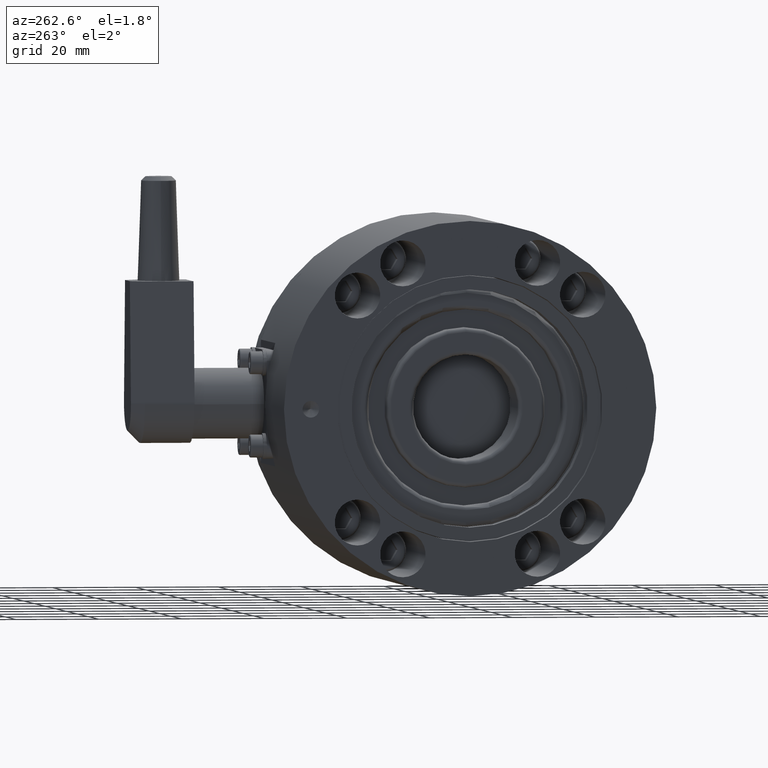
[diagram: clean part render]
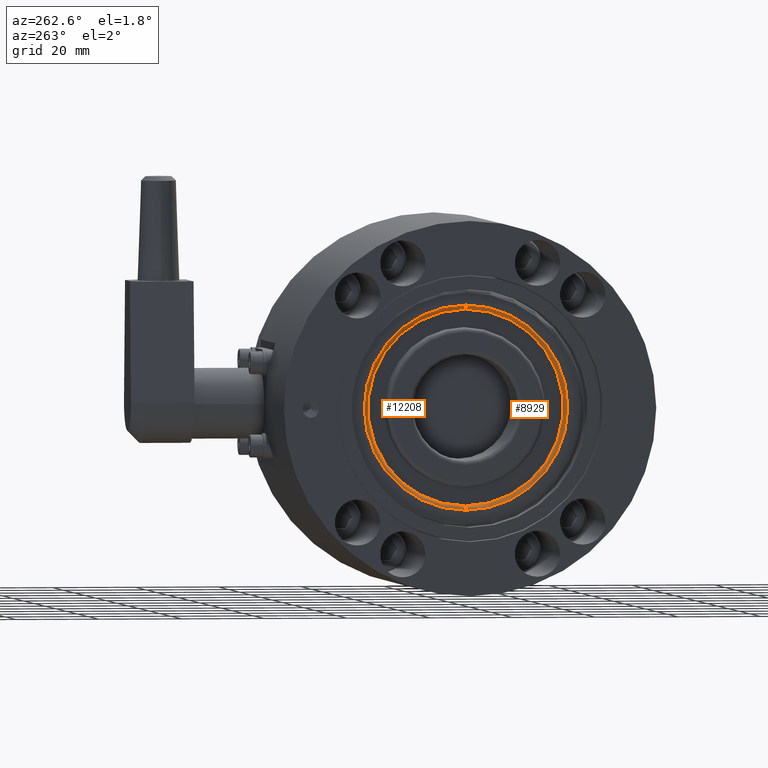
[diagram: same view with one multi-face feature highlighted, each face labeled with its STEP entity id]
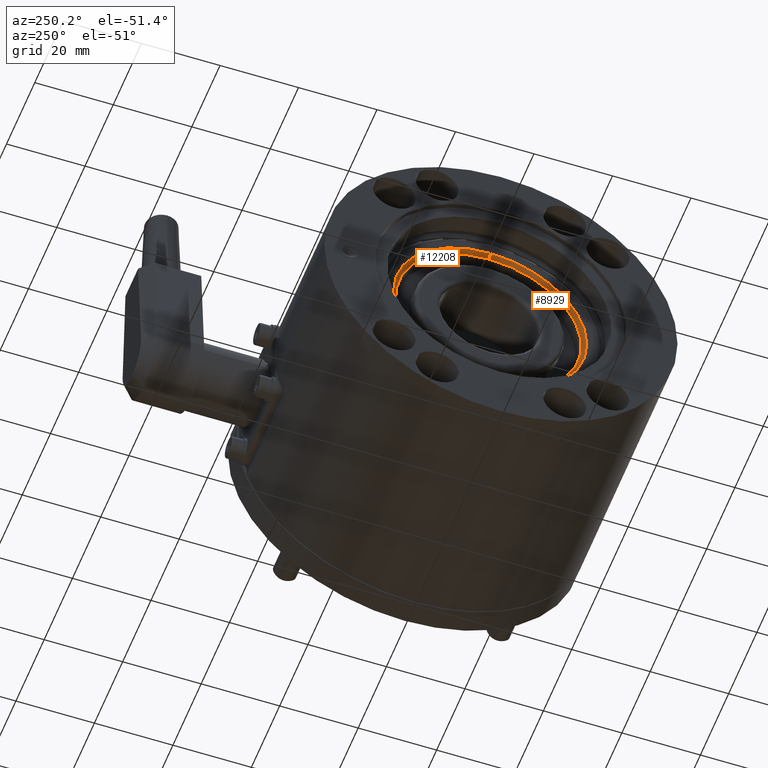
[diagram: same view with one multi-face feature highlighted, each face labeled with its STEP entity id]
A machine part, auxiliary view. The highlighted faces form ONE feature: a constant-radius fillet chain: 2 tangent blend faces with common blend radius 1 mm. The faces share edges in the B-rep.
A second angle (auxiliary view) of the same feature is appended — it is thin or edge-on in the first view.
Their STEP definitions:
[1] entity #12208 (Torus):
#172 = VERTEX_POINT ( 'NONE', #6543 ) ;
#666 = CARTESIAN_POINT ( 'NONE',  ( 1.000000000000000000, 0.000000000000000000, 0.000000000000000000 ) ) ;
#719 = EDGE_CURVE ( 'NONE', #13779, #5017, #11859, .T. ) ;
#738 = DIRECTION ( 'NONE',  ( 0.000000000000000000, -1.000000000000000000, 0.000000000000000000 ) ) ;
#1841 = DIRECTION ( 'NONE',  ( 1.000000000000000000, 0.000000000000000000, 0.000000000000000000 ) ) ;
#2096 = DIRECTION ( 'NONE',  ( 1.000000000000000000, 0.000000000000000000, 0.000000000000000000 ) ) ;
#2109 = AXIS2_PLACEMENT_3D ( 'NONE', #12876, #2096, #8563 ) ;
#2114 = EDGE_CURVE ( 'NONE', #13779, #2967, #9685, .T. ) ;
#2967 = VERTEX_POINT ( 'NONE', #3728 ) ;
#3454 = CARTESIAN_POINT ( 'NONE',  ( 1.000000000000000000, 0.000000000000000000, -23.60000000000000142 ) ) ;
#3728 = CARTESIAN_POINT ( 'NONE',  ( 0.000000000000000000, 3.012631125902489220E-15, 24.60000000000000497 ) ) ;
#3918 = ORIENTED_EDGE ( 'NONE', *, *, #719, .F. ) ;
#3936 = AXIS2_PLACEMENT_3D ( 'NONE', #666, #13565, #10178 ) ;
#3993 = DIRECTION ( 'NONE',  ( 0.000000000000000000, 0.000000000000000000, -1.000000000000000000 ) ) ;
#4275 = ORIENTED_EDGE ( 'NONE', *, *, #11786, .F. ) ;
#4467 = DIRECTION ( 'NONE',  ( 0.000000000000000000, 1.224646799147353454E-16, 1.000000000000000000 ) ) ;
#4596 = CARTESIAN_POINT ( 'NONE',  ( 1.000000000000000000, 3.012631125902489220E-15, 24.60000000000000497 ) ) ;
#4716 = TOROIDAL_SURFACE ( 'NONE', #7566, 24.60000000000000497, 1.000000000000000000 ) ;
#5017 = VERTEX_POINT ( 'NONE', #3454 ) ;
#6543 = CARTESIAN_POINT ( 'NONE',  ( 0.000000000000000000, 0.000000000000000000, -24.60000000000000497 ) ) ;
#6758 = DIRECTION ( 'NONE',  ( 0.000000000000000000, 1.000000000000000000, -1.224646799147353207E-16 ) ) ;
#6982 = AXIS2_PLACEMENT_3D ( 'NONE', #11414, #738, #11281 ) ;
#7566 = AXIS2_PLACEMENT_3D ( 'NONE', #12431, #1841, #3993 ) ;
#7897 = EDGE_CURVE ( 'NONE', #5017, #172, #9958, .T. ) ;
#8152 = ORIENTED_EDGE ( 'NONE', *, *, #7897, .F. ) ;
#8563 = DIRECTION ( 'NONE',  ( 0.000000000000000000, 0.000000000000000000, -1.000000000000000000 ) ) ;
#9685 = CIRCLE ( 'NONE', #11161, 1.000000000000000888 ) ;
#9686 = CARTESIAN_POINT ( 'NONE',  ( 1.000000000000000000, 2.890166445987753677E-15, 23.60000000000000142 ) ) ;
#9958 = CIRCLE ( 'NONE', #6982, 1.000000000000000888 ) ;
#10178 = DIRECTION ( 'NONE',  ( 0.000000000000000000, 0.000000000000000000, -1.000000000000000000 ) ) ;
#10340 = EDGE_LOOP ( 'NONE', ( #3918, #10685, #4275, #8152 ) ) ;
#10685 = ORIENTED_EDGE ( 'NONE', *, *, #2114, .T. ) ;
#11161 = AXIS2_PLACEMENT_3D ( 'NONE', #4596, #6758, #4467 ) ;
#11281 = DIRECTION ( 'NONE',  ( 0.000000000000000000, 0.000000000000000000, -1.000000000000000000 ) ) ;
#11359 = FACE_OUTER_BOUND ( 'NONE', #10340, .T. ) ;
#11414 = CARTESIAN_POINT ( 'NONE',  ( 1.000000000000000000, 0.000000000000000000, -24.60000000000000497 ) ) ;
#11786 = EDGE_CURVE ( 'NONE', #172, #2967, #12357, .T. ) ;
#11859 = CIRCLE ( 'NONE', #3936, 23.60000000000000142 ) ;
#12208 = ADVANCED_FACE ( 'NONE', ( #11359 ), #4716, .T. ) ;
#12357 = CIRCLE ( 'NONE', #2109, 24.60000000000000497 ) ;
#12431 = CARTESIAN_POINT ( 'NONE',  ( 1.000000000000000000, 0.000000000000000000, 0.000000000000000000 ) ) ;
#12876 = CARTESIAN_POINT ( 'NONE',  ( 0.000000000000000000, 0.000000000000000000, 0.000000000000000000 ) ) ;
#13565 = DIRECTION ( 'NONE',  ( -1.000000000000000000, -0.000000000000000000, -0.000000000000000000 ) ) ;
#13779 = VERTEX_POINT ( 'NONE', #9686 ) ;
[2] entity #8929 (Torus):
#112 = DIRECTION ( 'NONE',  ( 0.000000000000000000, 0.000000000000000000, -1.000000000000000000 ) ) ;
#172 = VERTEX_POINT ( 'NONE', #6543 ) ;
#255 = CARTESIAN_POINT ( 'NONE',  ( 1.000000000000000000, 0.000000000000000000, 0.000000000000000000 ) ) ;
#738 = DIRECTION ( 'NONE',  ( 0.000000000000000000, -1.000000000000000000, 0.000000000000000000 ) ) ;
#766 = DIRECTION ( 'NONE',  ( 0.000000000000000000, 0.000000000000000000, -1.000000000000000000 ) ) ;
#1181 = DIRECTION ( 'NONE',  ( 1.000000000000000000, 0.000000000000000000, 0.000000000000000000 ) ) ;
#2114 = EDGE_CURVE ( 'NONE', #13779, #2967, #9685, .T. ) ;
#2242 = ORIENTED_EDGE ( 'NONE', *, *, #2114, .F. ) ;
#2893 = DIRECTION ( 'NONE',  ( 0.000000000000000000, 0.000000000000000000, -1.000000000000000000 ) ) ;
#2967 = VERTEX_POINT ( 'NONE', #3728 ) ;
#3454 = CARTESIAN_POINT ( 'NONE',  ( 1.000000000000000000, 0.000000000000000000, -23.60000000000000142 ) ) ;
#3728 = CARTESIAN_POINT ( 'NONE',  ( 0.000000000000000000, 3.012631125902489220E-15, 24.60000000000000497 ) ) ;
#4081 = AXIS2_PLACEMENT_3D ( 'NONE', #12548, #6087, #766 ) ;
#4467 = DIRECTION ( 'NONE',  ( 0.000000000000000000, 1.224646799147353454E-16, 1.000000000000000000 ) ) ;
#4596 = CARTESIAN_POINT ( 'NONE',  ( 1.000000000000000000, 3.012631125902489220E-15, 24.60000000000000497 ) ) ;
#5017 = VERTEX_POINT ( 'NONE', #3454 ) ;
#5438 = CIRCLE ( 'NONE', #4081, 23.60000000000000142 ) ;
#5730 = AXIS2_PLACEMENT_3D ( 'NONE', #255, #1181, #112 ) ;
#6087 = DIRECTION ( 'NONE',  ( -1.000000000000000000, -0.000000000000000000, -0.000000000000000000 ) ) ;
#6449 = EDGE_CURVE ( 'NONE', #5017, #13779, #5438, .T. ) ;
#6543 = CARTESIAN_POINT ( 'NONE',  ( 0.000000000000000000, 0.000000000000000000, -24.60000000000000497 ) ) ;
#6550 = AXIS2_PLACEMENT_3D ( 'NONE', #8041, #7177, #2893 ) ;
#6612 = ORIENTED_EDGE ( 'NONE', *, *, #6449, .F. ) ;
#6758 = DIRECTION ( 'NONE',  ( 0.000000000000000000, 1.000000000000000000, -1.224646799147353207E-16 ) ) ;
#6982 = AXIS2_PLACEMENT_3D ( 'NONE', #11414, #738, #11281 ) ;
#7177 = DIRECTION ( 'NONE',  ( 1.000000000000000000, 0.000000000000000000, 0.000000000000000000 ) ) ;
#7897 = EDGE_CURVE ( 'NONE', #5017, #172, #9958, .T. ) ;
#8041 = CARTESIAN_POINT ( 'NONE',  ( 0.000000000000000000, 0.000000000000000000, 0.000000000000000000 ) ) ;
#8231 = CIRCLE ( 'NONE', #6550, 24.60000000000000497 ) ;
#8929 = ADVANCED_FACE ( 'NONE', ( #10918 ), #12570, .T. ) ;
#9685 = CIRCLE ( 'NONE', #11161, 1.000000000000000888 ) ;
#9686 = CARTESIAN_POINT ( 'NONE',  ( 1.000000000000000000, 2.890166445987753677E-15, 23.60000000000000142 ) ) ;
#9731 = EDGE_CURVE ( 'NONE', #2967, #172, #8231, .T. ) ;
#9958 = CIRCLE ( 'NONE', #6982, 1.000000000000000888 ) ;
#10847 = ORIENTED_EDGE ( 'NONE', *, *, #7897, .T. ) ;
#10918 = FACE_OUTER_BOUND ( 'NONE', #12199, .T. ) ;
#11161 = AXIS2_PLACEMENT_3D ( 'NONE', #4596, #6758, #4467 ) ;
#11281 = DIRECTION ( 'NONE',  ( 0.000000000000000000, 0.000000000000000000, -1.000000000000000000 ) ) ;
#11414 = CARTESIAN_POINT ( 'NONE',  ( 1.000000000000000000, 0.000000000000000000, -24.60000000000000497 ) ) ;
#12199 = EDGE_LOOP ( 'NONE', ( #2242, #6612, #10847, #13733 ) ) ;
#12548 = CARTESIAN_POINT ( 'NONE',  ( 1.000000000000000000, 0.000000000000000000, 0.000000000000000000 ) ) ;
#12570 = TOROIDAL_SURFACE ( 'NONE', #5730, 24.60000000000000497, 1.000000000000000000 ) ;
#13733 = ORIENTED_EDGE ( 'NONE', *, *, #9731, .F. ) ;
#13779 = VERTEX_POINT ( 'NONE', #9686 ) ;